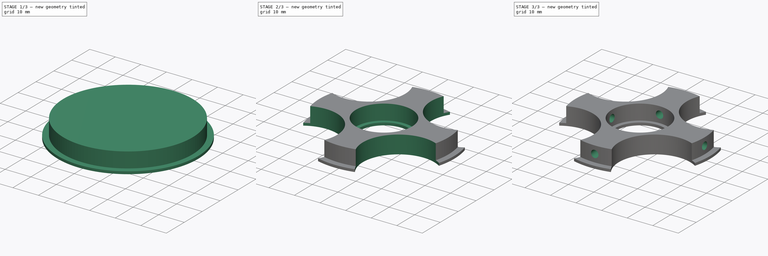
[diagram: build sequence overview — one tinted view per stage of 3, left to right]
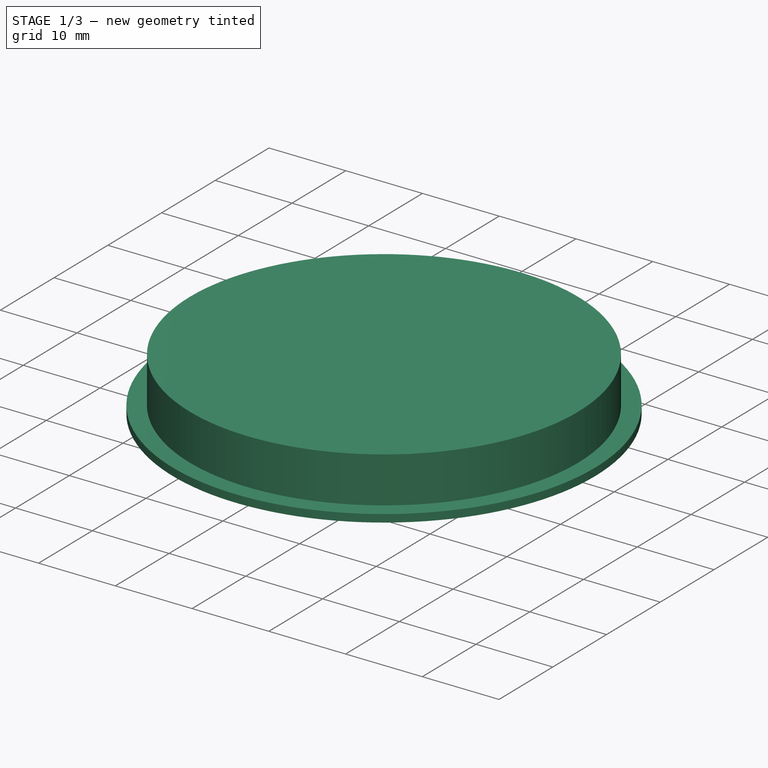
[diagram: stage 1 of 3 — iso view after this stage's code; geometry added in this stage tinted green]
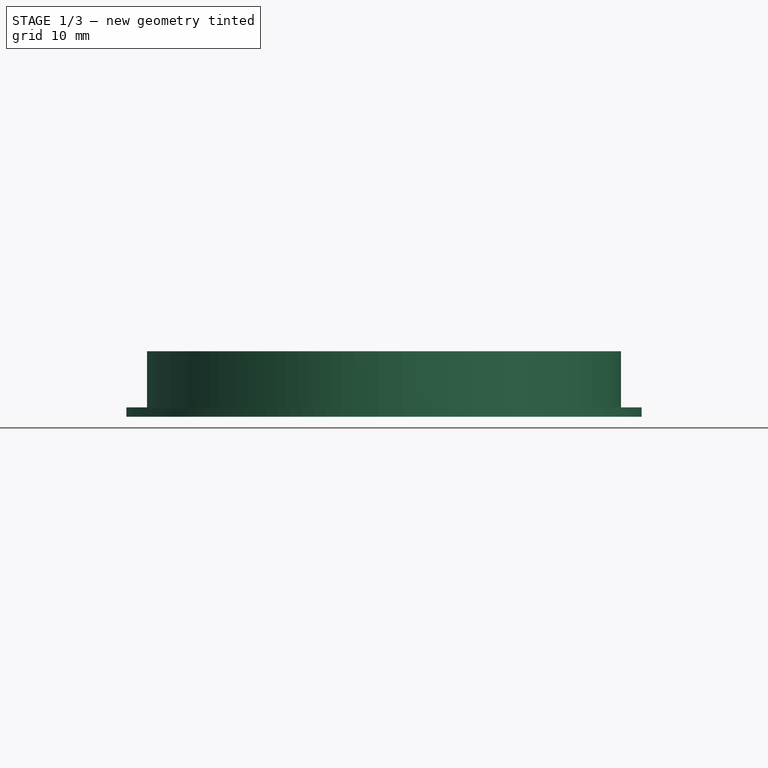
[diagram: stage 1 of 3 — front view after this stage's code; geometry added in this stage tinted green]
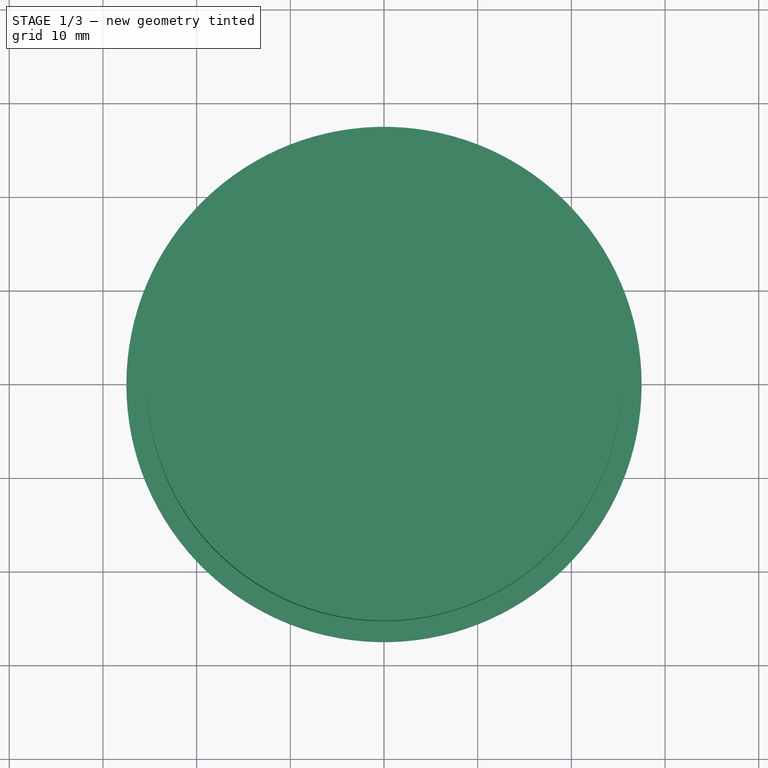
[diagram: stage 1 of 3 — top view after this stage's code; geometry added in this stage tinted green]
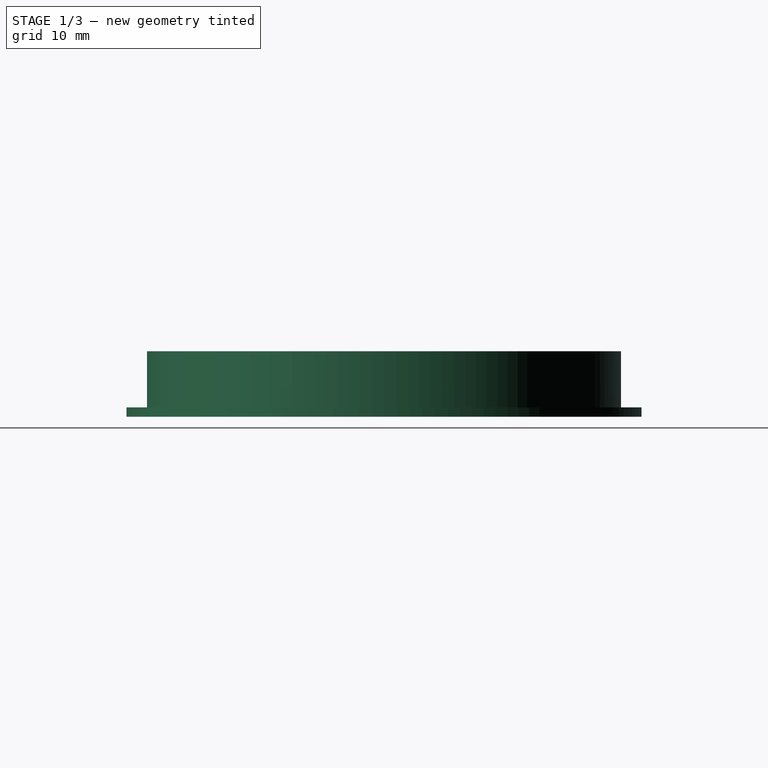
[diagram: stage 1 of 3 — right view after this stage's code; geometry added in this stage tinted green]
FCSTD DOCUMENT  (FreeCAD 0.19R)
Label: BDD_cover
License: All rights reserved
LicenseURL: http://en.wikipedia.org/wiki/All_rights_reserved
objects: Sketcher::SketchObject×6, PartDesign::Pocket×4, PartDesign::Pad×2, PartDesign::Body×1
note: 19 computed .brp shape members not serialized (recipe doc carries the construction recipe); baked Part::Feature solids carry a one-line shape summary decoded from their .brp

FEATURE [Sketcher::SketchObject] Sketch
  FullyConstrained = true
  MapMode = 5
  Support = -> [XY_Plane]
  sketch-geometry (1):
    g0: Circle CenterX=0 CenterY=0 CenterZ=0 NormalX=0 NormalY=0 NormalZ=1 AngleXU=0 Radius=27.5
  constraints (2):
    c: Coincident(g0,g-1)
    c: Diameter(g0) = 55
FEATURE [PartDesign::Pad] Pad
  Direction = (1,1,1)
  Length = 1
  Length2 = 100
  Profile = -> Sketch
  Type = 0
FEATURE [Sketcher::SketchObject] Sketch001
  FullyConstrained = true
  MapMode = 5
  Placement = pos=(0,0,1) rot=(0,0,1;0rad)
  Support = -> [Pad]
  sketch-geometry (1):
    g0: Circle CenterX=0 CenterY=0 CenterZ=0 NormalX=0 NormalY=0 NormalZ=1 AngleXU=0 Radius=25.3
  constraints (2):
    c: Coincident(g0,g-1)
    c: Diameter(g0) = 50.6
FEATURE [PartDesign::Pad] Pad001
  BaseFeature = -> Pad
  Direction = (1,1,1)
  Length = 6
  Length2 = 100
  Profile = -> Sketch001
  Type = 0
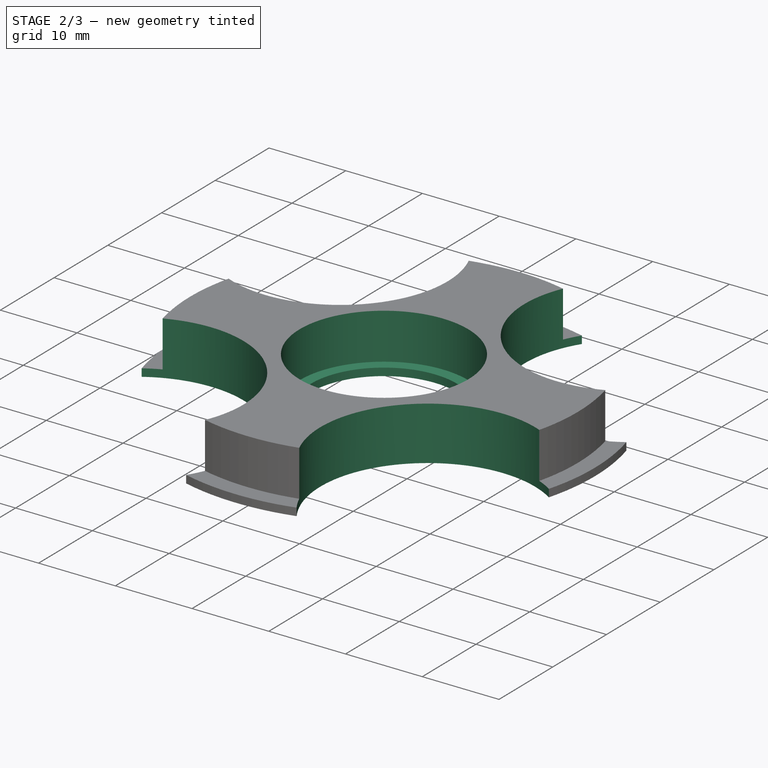
[diagram: stage 2 of 3 — iso view after this stage's code; geometry added in this stage tinted green]
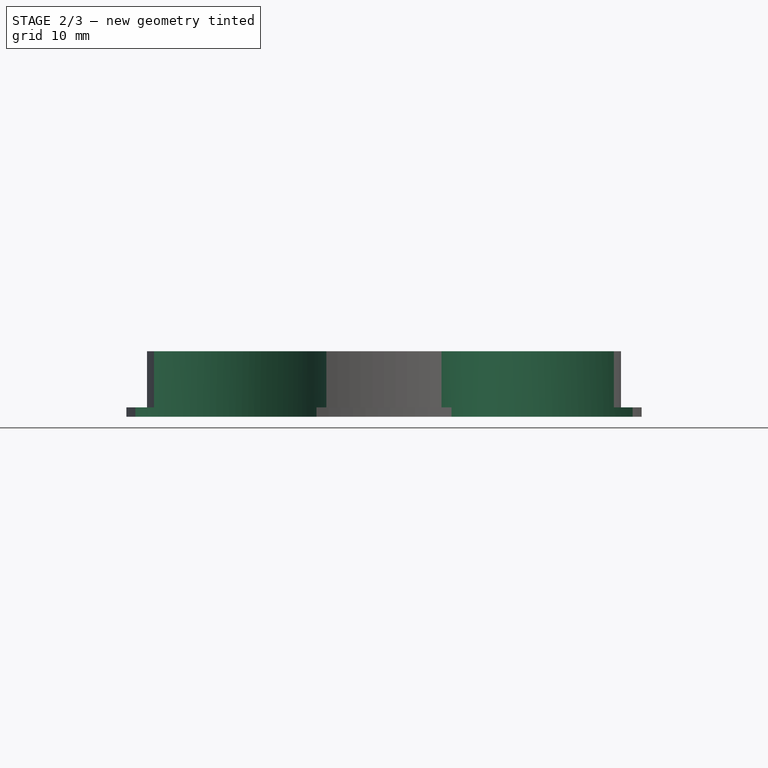
[diagram: stage 2 of 3 — front view after this stage's code; geometry added in this stage tinted green]
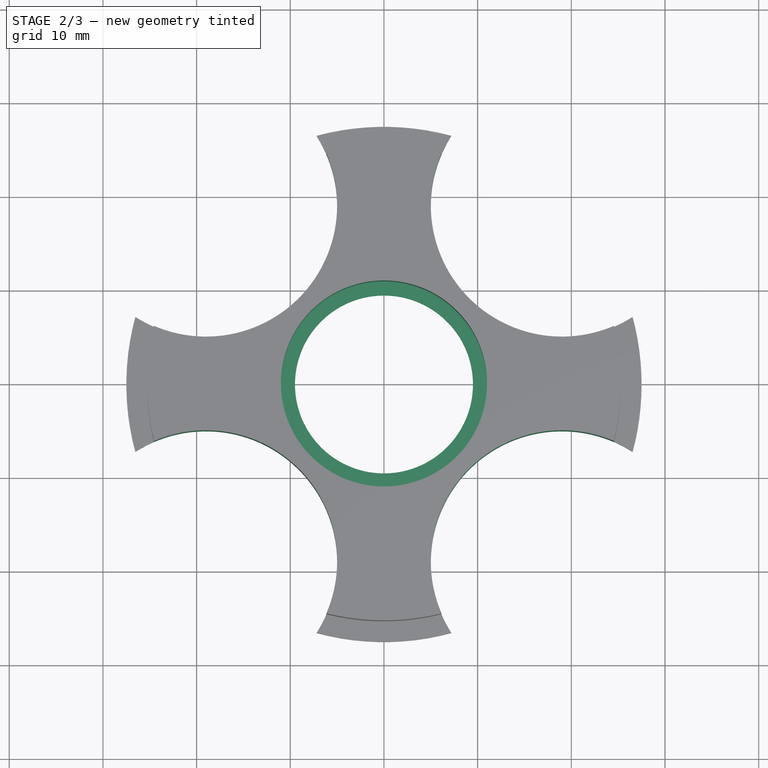
[diagram: stage 2 of 3 — top view after this stage's code; geometry added in this stage tinted green]
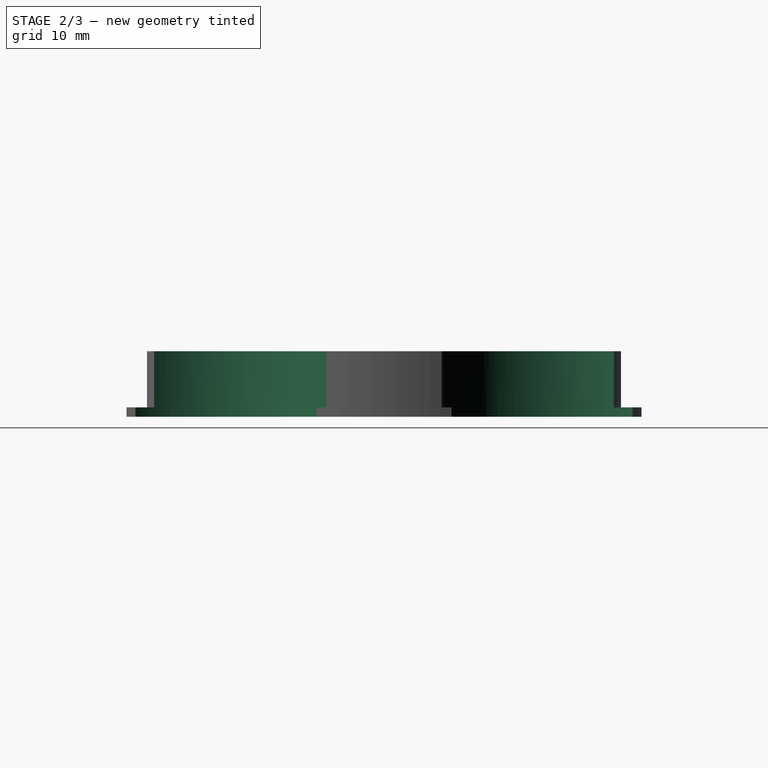
[diagram: stage 2 of 3 — right view after this stage's code; geometry added in this stage tinted green]
FEATURE [Sketcher::SketchObject] Sketch002
  FullyConstrained = true
  MapMode = 5
  Placement = pos=(0,0,7) rot=(0,0,1;0rad)
  Support = -> [Pad001]
  sketch-geometry (1):
    g0: Circle CenterX=0 CenterY=0 CenterZ=0 NormalX=0 NormalY=0 NormalZ=1 AngleXU=0 Radius=11
  constraints (2):
    c: Coincident(g0,g-1)
    c: Diameter(g0) = 22
FEATURE [PartDesign::Pocket] Pocket
  BaseFeature = -> Pad001
  Length = 6
  Length2 = 100
  Profile = -> Sketch002
  Type = 0
FEATURE [Sketcher::SketchObject] Sketch003
  FullyConstrained = true
  MapMode = 5
  Placement = pos=(0,0,7) rot=(0,0,1;0rad)
  Support = -> [Pocket]
  sketch-geometry (5):
    g0: Circle CenterX=0 CenterY=0 CenterZ=0 NormalX=0 NormalY=0 NormalZ=1 AngleXU=0 Radius=9.5
    g1: Circle CenterX=-19 CenterY=19 CenterZ=0 NormalX=0 NormalY=0 NormalZ=1 AngleXU=0 Radius=14
    g2: Circle CenterX=19 CenterY=19 CenterZ=0 NormalX=0 NormalY=0 NormalZ=1 AngleXU=0 Radius=14
    g3: Circle CenterX=-19 CenterY=-19 CenterZ=0 NormalX=0 NormalY=0 NormalZ=1 AngleXU=0 Radius=14
    g4: Circle CenterX=19 CenterY=-19 CenterZ=0 NormalX=0 NormalY=0 NormalZ=1 AngleXU=0 Radius=14
  constraints (11):
    c: Coincident(g0,g-1)
    c: Diameter(g0) = 19
    c: Equal(g1,g2)
    c: Equal(g1,g3)
    c: Equal(g3,g4)
    c: Symmetric(g1,g2,g-2)
    c: Symmetric(g1,g3,g-1)
    c: Symmetric(g3,g4,g-2)
    c: DistanceY(g3,g1) = 38
    c: DistanceX(g1,g2) = 38
    c: Diameter(g1) = 28
FEATURE [PartDesign::Pocket] Pocket001
  BaseFeature = -> Pocket
  Length = 5
  Length2 = 100
  Midplane = true
  Profile = -> Sketch003
  Type = 1
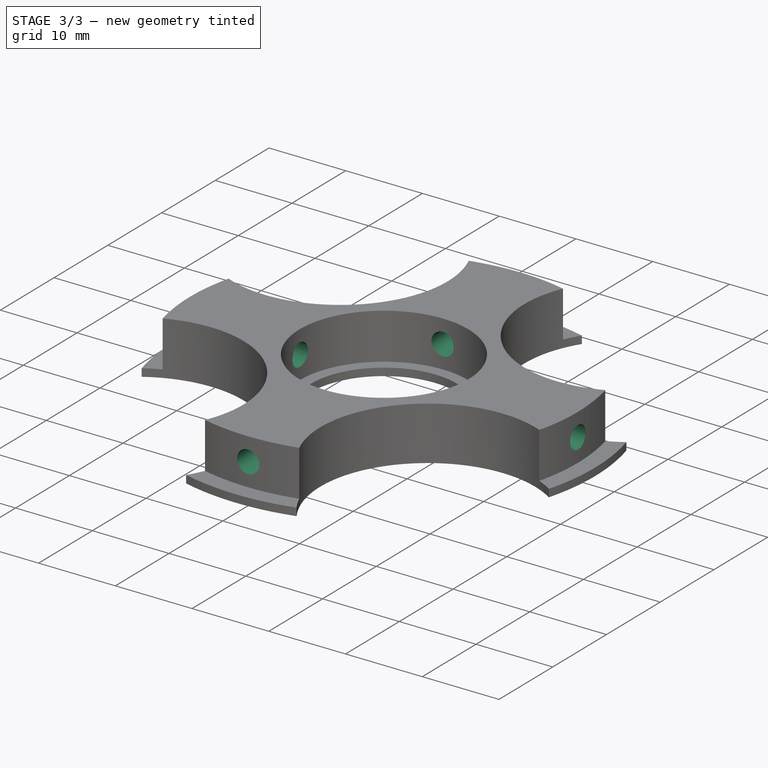
[diagram: stage 3 of 3 — iso view after this stage's code; geometry added in this stage tinted green]
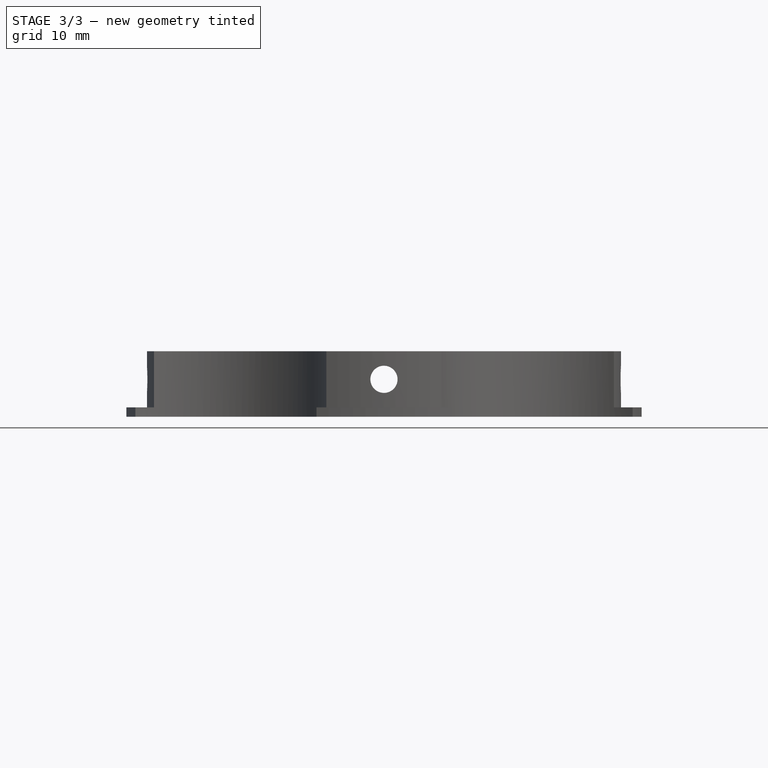
[diagram: stage 3 of 3 — front view after this stage's code; geometry added in this stage tinted green]
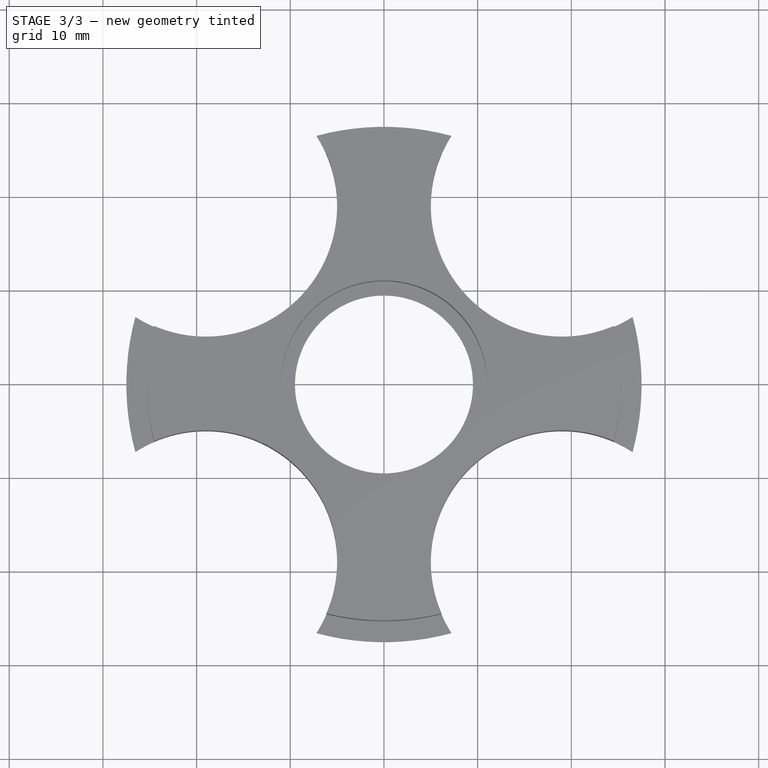
[diagram: stage 3 of 3 — top view after this stage's code; geometry added in this stage tinted green]
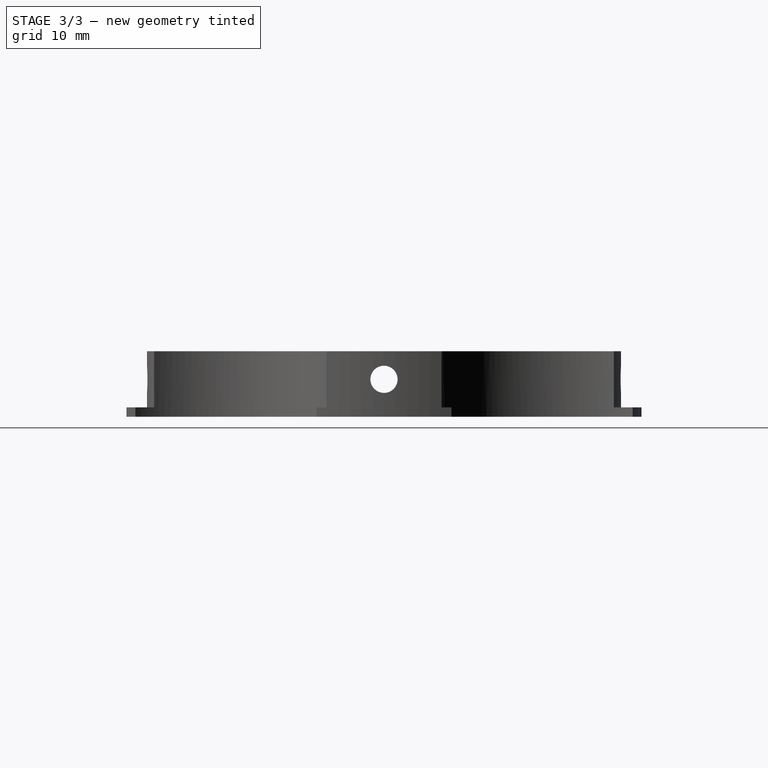
[diagram: stage 3 of 3 — right view after this stage's code; geometry added in this stage tinted green]
FEATURE [Sketcher::SketchObject] Sketch004
  FullyConstrained = true
  MapMode = 5
  Placement = pos=(0,0,0) rot=(1,0,0;1.5708rad)
  Support = -> [XZ_Plane]
  sketch-geometry (1):
    g0: Circle CenterX=0 CenterY=4 CenterZ=0 NormalX=0 NormalY=0 NormalZ=1 AngleXU=0 Radius=1.45
  constraints (3):
    c: PointOnObject(g0,g-2)
    c: Diameter(g0) = 2.9
    c: DistanceY(g-1,g0) = 4
FEATURE [PartDesign::Pocket] Pocket002
  BaseFeature = -> Pocket001
  Length = 5
  Length2 = 100
  Midplane = true
  Profile = -> Sketch004
  Type = 1
FEATURE [Sketcher::SketchObject] Sketch005
  FullyConstrained = true
  MapMode = 5
  Placement = pos=(0,0,0) rot=(0.57735,0.57735,0.57735;2.0944rad)
  Support = -> [YZ_Plane]
  sketch-geometry (1):
    g0: Circle CenterX=0 CenterY=4 CenterZ=0 NormalX=0 NormalY=0 NormalZ=1 AngleXU=0 Radius=1.45
  constraints (3):
    c: PointOnObject(g0,g-2)
    c: Diameter(g0) = 2.9
    c: DistanceY(g-1,g0) = 4
FEATURE [PartDesign::Pocket] Pocket003
  BaseFeature = -> Pocket002
  Length = 5
  Length2 = 100
  Midplane = true
  Profile = -> Sketch005
  Type = 1
FEATURE [PartDesign::Body] Body  label="BDD_cover"
  Group = -> [Sketch,Pad,Sketch001,Pad001,Sketch002,Pocket,Sketch003,Pocket001,Sketch004,Pocket002,Sketch005,Pocket003]
  Origin = -> Origin
  Tip = -> Pocket003
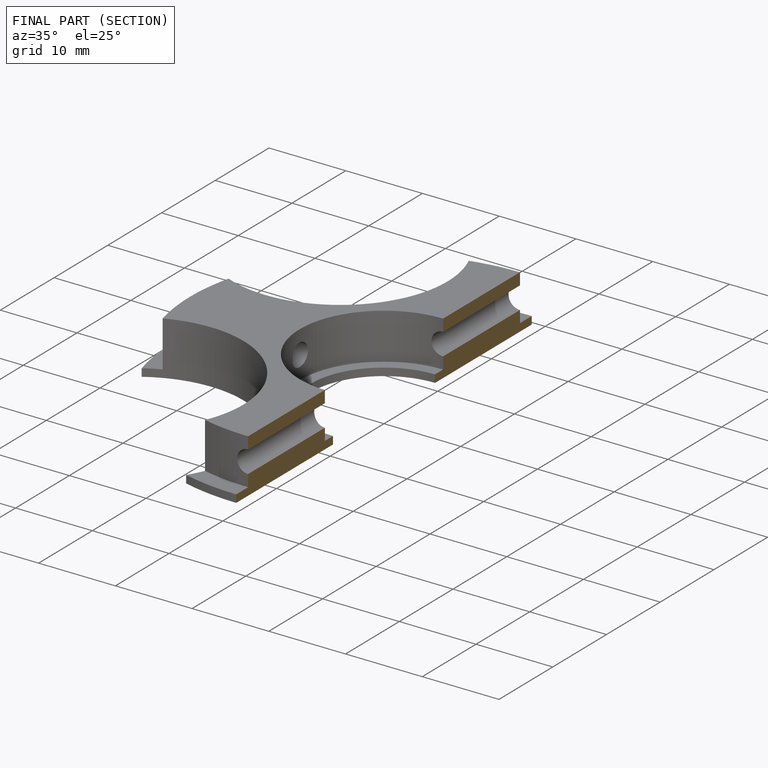
[diagram: finished part — half-section view (interior)]
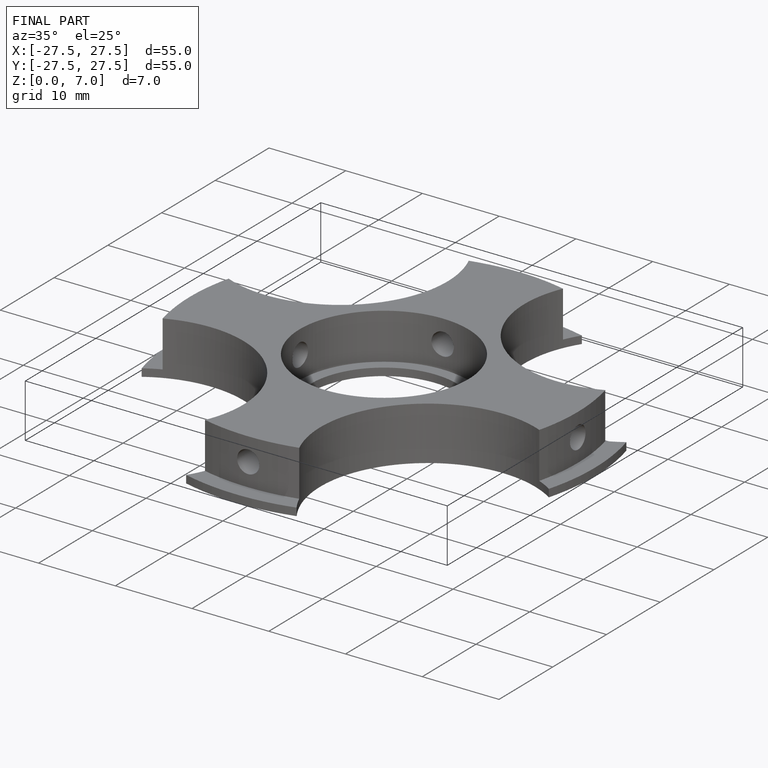
[diagram: finished part — iso view with bounding-box wireframe]
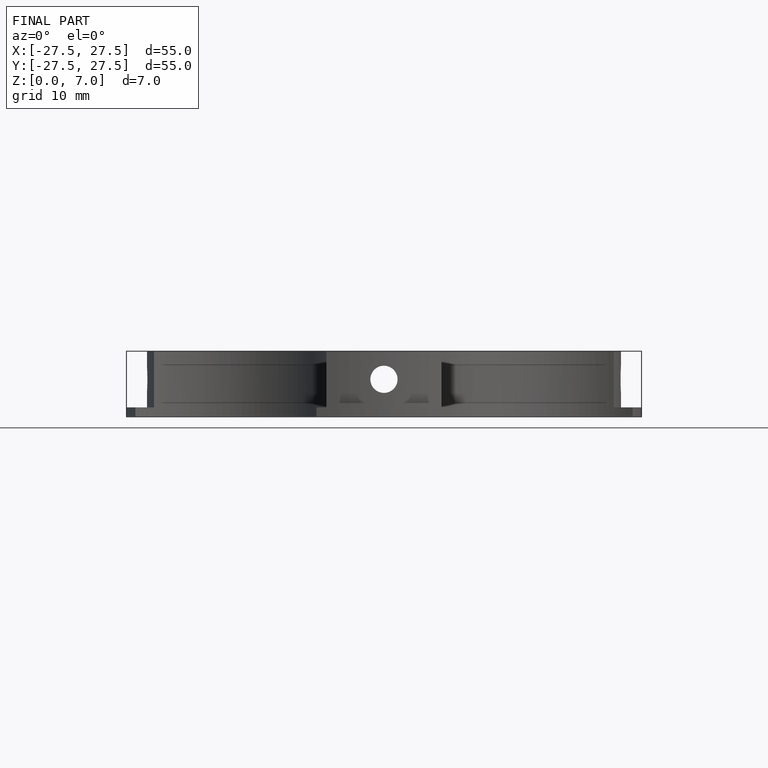
[diagram: finished part — front view with bounding-box wireframe]
